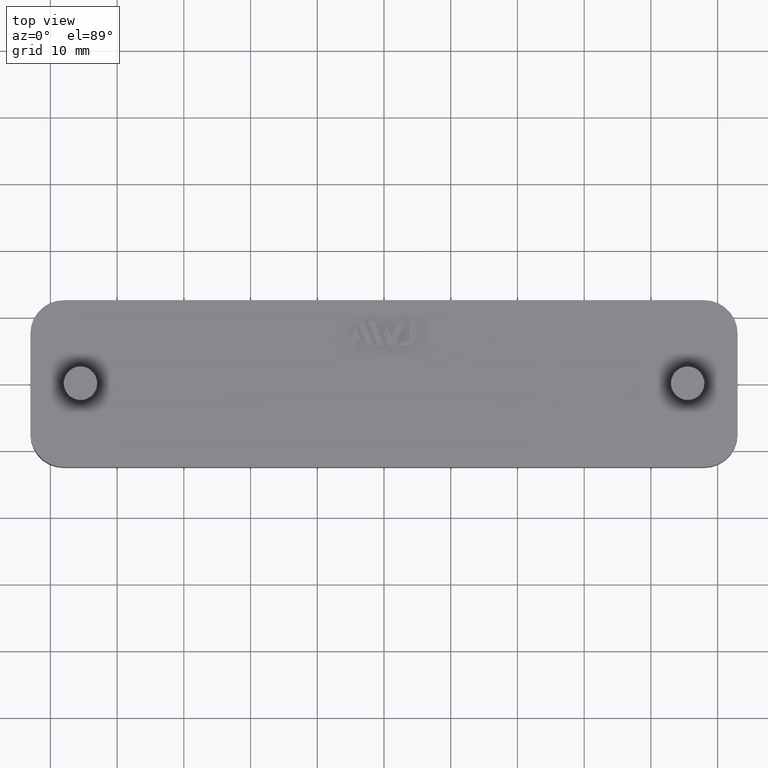
[diagram: clean part render]
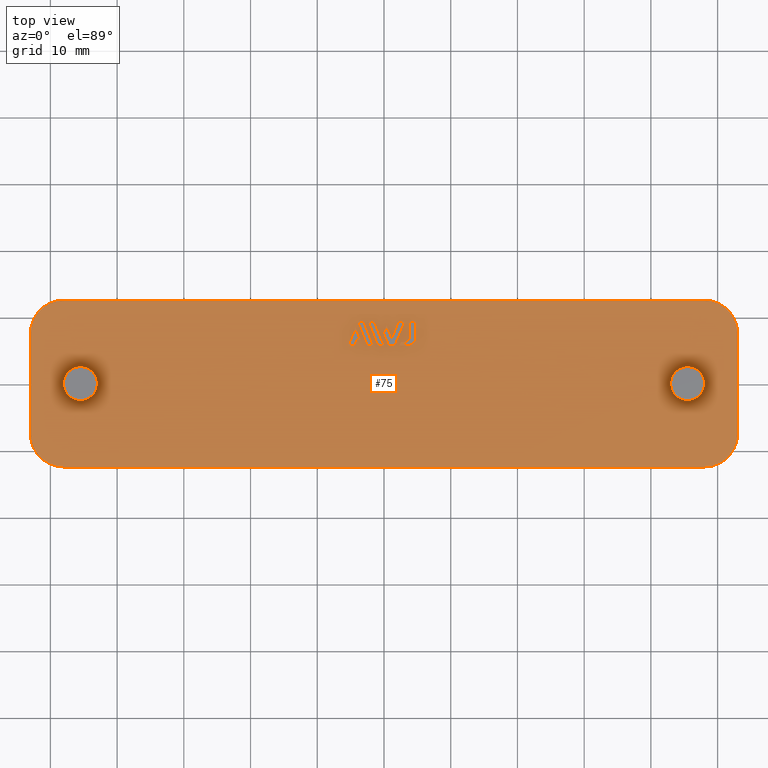
[diagram: same view with one face highlighted and labeled with its STEP entity id]
A machine part, top view. The second image highlights one B-rep face of the part: STEP entity #75.
In plain terms, the highlighted planar face has unit normal (0, -0, -1).
Its self-contained STEP definition (entity closure, byte-faithful):
#75 = ADVANCED_FACE( '', ( #642, #643, #644, #645, #646, #647, #648, #649 ), #650, .F. );
#642 = FACE_BOUND( '', #1862, .T. );
#643 = FACE_BOUND( '', #1863, .T. );
#644 = FACE_OUTER_BOUND( '', #1864, .T. );
#645 = FACE_BOUND( '', #1865, .T. );
#646 = FACE_BOUND( '', #1866, .T. );
#647 = FACE_BOUND( '', #1867, .T. );
#648 = FACE_BOUND( '', #1868, .T. );
#649 = FACE_BOUND( '', #1869, .T. );
#650 = PLANE( '', #1870 );
#1862 = EDGE_LOOP( '', ( #3082, #3083, #3084, #3085, #3086, #3087, #3088 ) );
#1863 = EDGE_LOOP( '', ( #3089, #3090, #3091, #3092 ) );
#1864 = EDGE_LOOP( '', ( #3093, #3094, #3095, #3096, #3097, #3098, #3099, #3100 ) );
#1865 = EDGE_LOOP( '', ( #3101 ) );
#1866 = EDGE_LOOP( '', ( #3102 ) );
#1867 = EDGE_LOOP( '', ( #3103, #3104, #3105, #3106, #3107 ) );
#1868 = EDGE_LOOP( '', ( #3108, #3109, #3110, #3111 ) );
#1869 = EDGE_LOOP( '', ( #3112, #3113, #3114, #3115, #3116, #3117, #3118, #3119 ) );
#1870 = AXIS2_PLACEMENT_3D( '', #3120, #3121, #3122 );
#3082 = ORIENTED_EDGE( '', *, *, #7644, .F. );
#3083 = ORIENTED_EDGE( '', *, *, #7645, .F. );
#3084 = ORIENTED_EDGE( '', *, *, #7646, .F. );
#3085 = ORIENTED_EDGE( '', *, *, #7647, .F. );
#3086 = ORIENTED_EDGE( '', *, *, #7648, .F. );
#3087 = ORIENTED_EDGE( '', *, *, #7649, .F. );
#3088 = ORIENTED_EDGE( '', *, *, #7650, .F. );
#3089 = ORIENTED_EDGE( '', *, *, #7651, .F. );
#3090 = ORIENTED_EDGE( '', *, *, #7652, .F. );
#3091 = ORIENTED_EDGE( '', *, *, #7653, .F. );
#3092 = ORIENTED_EDGE( '', *, *, #7654, .F. );
#3093 = ORIENTED_EDGE( '', *, *, #7655, .F. );
#3094 = ORIENTED_EDGE( '', *, *, #7656, .F. );
#3095 = ORIENTED_EDGE( '', *, *, #7657, .F. );
#3096 = ORIENTED_EDGE( '', *, *, #7658, .F. );
#3097 = ORIENTED_EDGE( '', *, *, #7659, .F. );
#3098 = ORIENTED_EDGE( '', *, *, #7660, .F. );
#3099 = ORIENTED_EDGE( '', *, *, #7661, .F. );
#3100 = ORIENTED_EDGE( '', *, *, #7662, .F. );
#3101 = ORIENTED_EDGE( '', *, *, #7663, .T. );
#3102 = ORIENTED_EDGE( '', *, *, #7664, .T. );
#3103 = ORIENTED_EDGE( '', *, *, #7665, .F. );
#3104 = ORIENTED_EDGE( '', *, *, #7666, .F. );
#3105 = ORIENTED_EDGE( '', *, *, #7667, .F. );
#3106 = ORIENTED_EDGE( '', *, *, #7668, .F. );
#3107 = ORIENTED_EDGE( '', *, *, #7669, .F. );
#3108 = ORIENTED_EDGE( '', *, *, #7670, .F. );
#3109 = ORIENTED_EDGE( '', *, *, #7671, .F. );
#3110 = ORIENTED_EDGE( '', *, *, #7672, .F. );
#3111 = ORIENTED_EDGE( '', *, *, #7673, .F. );
#3112 = ORIENTED_EDGE( '', *, *, #7674, .F. );
#3113 = ORIENTED_EDGE( '', *, *, #7675, .F. );
#3114 = ORIENTED_EDGE( '', *, *, #7676, .F. );
#3115 = ORIENTED_EDGE( '', *, *, #7677, .F. );
#3116 = ORIENTED_EDGE( '', *, *, #7678, .F. );
#3117 = ORIENTED_EDGE( '', *, *, #7679, .F. );
#3118 = ORIENTED_EDGE( '', *, *, #7680, .F. );
#3119 = ORIENTED_EDGE( '', *, *, #7681, .F. );
#3120 = CARTESIAN_POINT( '', ( 65.5000000000000, -7.75475603870257E-016, 9.99999999999998 ) );
#3121 = DIRECTION( '', ( 0.000000000000000, -6.12303176911189E-017, -1.00000000000000 ) );
#3122 = DIRECTION( '', ( 1.00000000000000, -1.60814287233912E-016, 9.84670989660330E-033 ) );
#7644 = EDGE_CURVE( '', #9076, #9077, #9078, .T. );
#7645 = EDGE_CURVE( '', #9079, #9076, #9080, .T. );
#7646 = EDGE_CURVE( '', #9081, #9079, #9082, .T. );
#7647 = EDGE_CURVE( '', #9083, #9081, #9084, .T. );
#7648 = EDGE_CURVE( '', #9085, #9083, #9086, .T. );
#7649 = EDGE_CURVE( '', #9087, #9085, #9088, .T. );
#7650 = EDGE_CURVE( '', #9077, #9087, #9089, .T. );
#7651 = EDGE_CURVE( '', #9090, #9091, #9092, .T. );
#7652 = EDGE_CURVE( '', #9093, #9090, #9094, .T. );
#7653 = EDGE_CURVE( '', #9095, #9093, #9096, .T. );
#7654 = EDGE_CURVE( '', #9091, #9095, #9097, .T. );
#7655 = EDGE_CURVE( '', #9098, #9099, #9100, .T. );
#7656 = EDGE_CURVE( '', #9101, #9098, #9102, .T. );
#7657 = EDGE_CURVE( '', #9103, #9101, #9104, .T. );
#7658 = EDGE_CURVE( '', #9105, #9103, #9106, .T. );
#7659 = EDGE_CURVE( '', #9107, #9105, #9108, .T. );
#7660 = EDGE_CURVE( '', #9109, #9107, #9110, .T. );
#7661 = EDGE_CURVE( '', #9111, #9109, #9112, .T. );
#7662 = EDGE_CURVE( '', #9099, #9111, #9113, .T. );
#7663 = EDGE_CURVE( '', #9114, #9114, #9115, .T. );
#7664 = EDGE_CURVE( '', #9116, #9116, #9117, .T. );
#7665 = EDGE_CURVE( '', #9118, #9119, #9120, .T. );
#7666 = EDGE_CURVE( '', #9121, #9118, #9122, .T. );
#7667 = EDGE_CURVE( '', #9123, #9121, #9124, .T. );
#7668 = EDGE_CURVE( '', #9125, #9123, #9126, .T. );
#7669 = EDGE_CURVE( '', #9119, #9125, #9127, .T. );
#7670 = EDGE_CURVE( '', #9128, #9129, #9130, .T. );
#7671 = EDGE_CURVE( '', #9131, #9128, #9132, .T. );
#7672 = EDGE_CURVE( '', #9133, #9131, #9134, .T. );
#7673 = EDGE_CURVE( '', #9129, #9133, #9135, .T. );
#7674 = EDGE_CURVE( '', #9136, #9137, #9138, .T. );
#7675 = EDGE_CURVE( '', #9139, #9136, #9140, .T. );
#7676 = EDGE_CURVE( '', #9141, #9139, #9142, .T. );
#7677 = EDGE_CURVE( '', #9143, #9141, #9144, .T. );
#7678 = EDGE_CURVE( '', #9145, #9143, #9146, .T. );
#7679 = EDGE_CURVE( '', #9147, #9145, #9148, .T. );
#7680 = EDGE_CURVE( '', #9149, #9147, #9150, .T. );
#7681 = EDGE_CURVE( '', #9137, #9149, #9151, .T. );
#9076 = VERTEX_POINT( '', #11464 );
#9077 = VERTEX_POINT( '', #11465 );
#9078 = LINE( '', #11466, #11467 );
#9079 = VERTEX_POINT( '', #11468 );
#9080 = LINE( '', #11469, #11470 );
#9081 = VERTEX_POINT( '', #11471 );
#9082 = LINE( '', #11472, #11473 );
#9083 = VERTEX_POINT( '', #11474 );
#9084 = LINE( '', #11475, #11476 );
#9085 = VERTEX_POINT( '', #11477 );
#9086 = LINE( '', #11478, #11479 );
#9087 = VERTEX_POINT( '', #11480 );
#9088 = LINE( '', #11481, #11482 );
#9089 = LINE( '', #11483, #11484 );
#9090 = VERTEX_POINT( '', #11485 );
#9091 = VERTEX_POINT( '', #11486 );
#9092 = LINE( '', #11487, #11488 );
#9093 = VERTEX_POINT( '', #11489 );
#9094 = LINE( '', #11490, #11491 );
#9095 = VERTEX_POINT( '', #11492 );
#9096 = LINE( '', #11493, #11494 );
#9097 = LINE( '', #11495, #11496 );
#9098 = VERTEX_POINT( '', #11497 );
#9099 = VERTEX_POINT( '', #11498 );
#9100 = CIRCLE( '', #11499, 4.99999999999999 );
#9101 = VERTEX_POINT( '', #11500 );
#9102 = LINE( '', #11501, #11502 );
#9103 = VERTEX_POINT( '', #11503 );
#9104 = CIRCLE( '', #11504, 5.00000000000000 );
#9105 = VERTEX_POINT( '', #11505 );
#9106 = LINE( '', #11506, #11507 );
#9107 = VERTEX_POINT( '', #11508 );
#9108 = CIRCLE( '', #11509, 5.00000000000000 );
#9109 = VERTEX_POINT( '', #11510 );
#9110 = LINE( '', #11511, #11512 );
#9111 = VERTEX_POINT( '', #11513 );
#9112 = CIRCLE( '', #11514, 5.00000000000000 );
#9113 = LINE( '', #11515, #11516 );
#9114 = VERTEX_POINT( '', #11517 );
#9115 = CIRCLE( '', #11518, 2.54363766232054 );
#9116 = VERTEX_POINT( '', #11519 );
#9117 = CIRCLE( '', #11520, 2.54363766232053 );
#9118 = VERTEX_POINT( '', #11521 );
#9119 = VERTEX_POINT( '', #11522 );
#9120 = LINE( '', #11523, #11524 );
#9121 = VERTEX_POINT( '', #11525 );
#9122 = LINE( '', #11526, #11527 );
#9123 = VERTEX_POINT( '', #11528 );
#9124 = LINE( '', #11529, #11530 );
#9125 = VERTEX_POINT( '', #11531 );
#9126 = LINE( '', #11532, #11533 );
#9127 = LINE( '', #11534, #11535 );
#9128 = VERTEX_POINT( '', #11536 );
#9129 = VERTEX_POINT( '', #11537 );
#9130 = LINE( '', #11538, #11539 );
#9131 = VERTEX_POINT( '', #11540 );
#9132 = LINE( '', #11541, #11542 );
#9133 = VERTEX_POINT( '', #11543 );
#9134 = LINE( '', #11544, #11545 );
#9135 = LINE( '', #11546, #11547 );
#9136 = VERTEX_POINT( '', #11548 );
#9137 = VERTEX_POINT( '', #11549 );
#9138 = CIRCLE( '', #11550, 1.20000000000000 );
#9139 = VERTEX_POINT( '', #11551 );
#9140 = LINE( '', #11552, #11553 );
#9141 = VERTEX_POINT( '', #11554 );
#9142 = LINE( '', #11555, #11556 );
#9143 = VERTEX_POINT( '', #11557 );
#9144 = LINE( '', #11558, #11559 );
#9145 = VERTEX_POINT( '', #11560 );
#9146 = CIRCLE( '', #11561, 0.799999999999993 );
#9147 = VERTEX_POINT( '', #11562 );
#9148 = LINE( '', #11563, #11564 );
#9149 = VERTEX_POINT( '', #11565 );
#9150 = LINE( '', #11566, #11567 );
#9151 = LINE( '', #11568, #11569 );
#11464 = CARTESIAN_POINT( '', ( 1.65153815900092, 5.70000000000035, 9.99999999999995 ) );
#11465 = CARTESIAN_POINT( '', ( 3.10489558569064, 9.29736617046504, 9.99999999999995 ) );
#11466 = CARTESIAN_POINT( '', ( 1.65153815900092, 5.70000000000035, 9.99999999999995 ) );
#11467 = VECTOR( '', #15268, 1000.00000000000 );
#11468 = CARTESIAN_POINT( '', ( 0.668868987414881, 5.70000000000035, 9.99999999999995 ) );
#11469 = CARTESIAN_POINT( '', ( 0.668868987414879, 5.70000000000035, 9.99999999999995 ) );
#11470 = VECTOR( '', #15269, 1000.00000000000 );
#11471 = CARTESIAN_POINT( '', ( -0.0717422425348929, 7.53275704409085, 9.99999999999995 ) );
#11472 = CARTESIAN_POINT( '', ( -0.0717422425348937, 7.53275704409086, 9.99999999999995 ) );
#11473 = VECTOR( '', #15270, 1000.00000000000 );
#11474 = CARTESIAN_POINT( '', ( 0.393055647481306, 8.68337374758990, 9.99999999999995 ) );
#11475 = CARTESIAN_POINT( '', ( 0.393055647481306, 8.68337374758989, 9.99999999999995 ) );
#11476 = VECTOR( '', #15271, 1000.00000000000 );
#11477 = CARTESIAN_POINT( '', ( 1.16010139340536, 6.78495716450369, 9.99999999999995 ) );
#11478 = CARTESIAN_POINT( '', ( 1.16010139340536, 6.78495716450370, 9.99999999999995 ) );
#11479 = VECTOR( '', #15272, 1000.00000000000 );
#11480 = CARTESIAN_POINT( '', ( 2.17529980565825, 9.29736617046504, 9.99999999999995 ) );
#11481 = CARTESIAN_POINT( '', ( 2.17529980565825, 9.29736617046503, 9.99999999999995 ) );
#11482 = VECTOR( '', #15273, 1000.00000000000 );
#11483 = CARTESIAN_POINT( '', ( 3.10489558569064, 9.29736617046504, 9.99999999999995 ) );
#11484 = VECTOR( '', #15274, 1000.00000000000 );
#11485 = CARTESIAN_POINT( '', ( -1.59847678860026, 5.70000000000034, 9.99999999999995 ) );
#11486 = CARTESIAN_POINT( '', ( -3.05206261720154, 9.29736617046503, 9.99999999999995 ) );
#11487 = CARTESIAN_POINT( '', ( -1.59847678860026, 5.70000000000034, 9.99999999999995 ) );
#11488 = VECTOR( '', #15275, 1000.00000000000 );
#11489 = CARTESIAN_POINT( '', ( -2.52799443113659, 5.70000000000035, 9.99999999999995 ) );
#11490 = CARTESIAN_POINT( '', ( -2.52799443113659, 5.70000000000034, 9.99999999999995 ) );
#11491 = VECTOR( '', #15276, 1000.00000000000 );
#11492 = CARTESIAN_POINT( '', ( -3.98137590013280, 9.29736617046503, 9.99999999999995 ) );
#11493 = CARTESIAN_POINT( '', ( -3.98137590013280, 9.29736617046503, 9.99999999999995 ) );
#11494 = VECTOR( '', #15277, 1000.00000000000 );
#11495 = CARTESIAN_POINT( '', ( -3.05206261720154, 9.29736617046503, 9.99999999999995 ) );
#11496 = VECTOR( '', #15278, 1000.00000000000 );
#11497 = CARTESIAN_POINT( '', ( 53.0000000000000, -7.49999999999999, 9.99999999999995 ) );
#11498 = CARTESIAN_POINT( '', ( 48.0000000000000, -12.5000000000000, 9.99999999999998 ) );
#11499 = AXIS2_PLACEMENT_3D( '', #15279, #15280, #15281 );
#11500 = CARTESIAN_POINT( '', ( 53.0000000000000, 7.50000000000002, 9.99999999999995 ) );
#11501 = CARTESIAN_POINT( '', ( 53.0000000000000, -7.75475603870267E-016, 9.99999999999998 ) );
#11502 = VECTOR( '', #15282, 1000.00000000000 );
#11503 = CARTESIAN_POINT( '', ( 48.0000000000000, 12.5000000000000, 9.99999999999995 ) );
#11504 = AXIS2_PLACEMENT_3D( '', #15283, #15284, #15285 );
#11505 = CARTESIAN_POINT( '', ( -48.0000000000000, 12.5000000000000, 9.99999999999998 ) );
#11506 = CARTESIAN_POINT( '', ( -65.4999999999999, 12.5000000000000, 9.99999999999998 ) );
#11507 = VECTOR( '', #15286, 1000.00000000000 );
#11508 = CARTESIAN_POINT( '', ( -53.0000000000000, 7.50000000000001, 9.99999999999998 ) );
#11509 = AXIS2_PLACEMENT_3D( '', #15287, #15288, #15289 );
#11510 = CARTESIAN_POINT( '', ( -53.0000000000000, -7.50000000000001, 9.99999999999998 ) );
#11511 = CARTESIAN_POINT( '', ( -53.0000000000000, -7.75475603870261E-016, 9.99999999999998 ) );
#11512 = VECTOR( '', #15290, 1000.00000000000 );
#11513 = CARTESIAN_POINT( '', ( -48.0000000000000, -12.5000000000000, 9.99999999999998 ) );
#11514 = AXIS2_PLACEMENT_3D( '', #15291, #15292, #15293 );
#11515 = CARTESIAN_POINT( '', ( 65.5000000000001, -12.5000000000000, 9.99999999999998 ) );
#11516 = VECTOR( '', #15294, 1000.00000000000 );
#11517 = CARTESIAN_POINT( '', ( -45.5000000000000, 2.54363766232053, 9.99999999999998 ) );
#11518 = AXIS2_PLACEMENT_3D( '', #15295, #15296, #15297 );
#11519 = CARTESIAN_POINT( '', ( 45.4999999999999, 2.54363766232053, 9.99999999999998 ) );
#11520 = AXIS2_PLACEMENT_3D( '', #15298, #15299, #15300 );
#11521 = CARTESIAN_POINT( '', ( -4.42597825270616, 5.70000000000034, 9.99999999999995 ) );
#11522 = CARTESIAN_POINT( '', ( -4.09004712542044, 6.53085402732117, 9.99999999999995 ) );
#11523 = CARTESIAN_POINT( '', ( -4.42597825270616, 5.70000000000034, 9.99999999999995 ) );
#11524 = VECTOR( '', #15301, 1000.00000000000 );
#11525 = CARTESIAN_POINT( '', ( -5.35529153563743, 5.70000000000035, 9.99999999999995 ) );
#11526 = CARTESIAN_POINT( '', ( -5.35529153563743, 5.70000000000034, 9.99999999999995 ) );
#11527 = VECTOR( '', #15302, 1000.00000000000 );
#11528 = CARTESIAN_POINT( '', ( -4.26568819540690, 8.39721019471687, 9.99999999999995 ) );
#11529 = CARTESIAN_POINT( '', ( -4.26568819540690, 8.39721019471687, 9.99999999999995 ) );
#11530 = VECTOR( '', #15303, 1000.00000000000 );
#11531 = CARTESIAN_POINT( '', ( -3.51197991900239, 6.53085402732117, 9.99999999999995 ) );
#11532 = CARTESIAN_POINT( '', ( -3.51197991900239, 6.53085402732117, 9.99999999999995 ) );
#11533 = VECTOR( '', #15304, 1000.00000000000 );
#11534 = CARTESIAN_POINT( '', ( -4.09004712542044, 6.53085402732117, 9.99999999999995 ) );
#11535 = VECTOR( '', #15305, 1000.00000000000 );
#11536 = CARTESIAN_POINT( '', ( 1.27502175484295E-013, 5.70000000000035, 9.99999999999995 ) );
#11537 = CARTESIAN_POINT( '', ( -1.45358582860116, 9.29736617046503, 9.99999999999995 ) );
#11538 = CARTESIAN_POINT( '', ( 1.27502175484295E-013, 5.70000000000035, 9.99999999999995 ) );
#11539 = VECTOR( '', #15306, 1000.00000000000 );
#11540 = CARTESIAN_POINT( '', ( -0.929583758879027, 5.70000000000035, 9.99999999999995 ) );
#11541 = CARTESIAN_POINT( '', ( -0.929583758879027, 5.70000000000035, 9.99999999999995 ) );
#11542 = VECTOR( '', #15307, 1000.00000000000 );
#11543 = CARTESIAN_POINT( '', ( -2.38316958748031, 9.29736617046503, 9.99999999999995 ) );
#11544 = CARTESIAN_POINT( '', ( -2.38316958748031, 9.29736617046503, 9.99999999999995 ) );
#11545 = VECTOR( '', #15308, 1000.00000000000 );
#11546 = CARTESIAN_POINT( '', ( -1.45358582860116, 9.29736617046503, 9.99999999999995 ) );
#11547 = VECTOR( '', #15309, 1000.00000000000 );
#11548 = CARTESIAN_POINT( '', ( 3.58288028181896, 5.70000000000035, 9.99999999999995 ) );
#11549 = CARTESIAN_POINT( '', ( 4.78288028181895, 6.90000000000035, 9.99999999999995 ) );
#11550 = AXIS2_PLACEMENT_3D( '', #15310, #15311, #15312 );
#11551 = CARTESIAN_POINT( '', ( 2.32040714641566, 5.70000000000035, 9.99999999999995 ) );
#11552 = CARTESIAN_POINT( '', ( 2.32040714641566, 5.70000000000035, 9.99999999999995 ) );
#11553 = VECTOR( '', #15313, 1000.00000000000 );
#11554 = CARTESIAN_POINT( '', ( 2.53176335265073, 6.22312496744069, 9.99999999999995 ) );
#11555 = CARTESIAN_POINT( '', ( 2.53176335265073, 6.22312496744070, 9.99999999999995 ) );
#11556 = VECTOR( '', #15314, 1000.00000000000 );
#11557 = CARTESIAN_POINT( '', ( 3.04274195062409, 6.22312496744070, 9.99999999999995 ) );
#11558 = CARTESIAN_POINT( '', ( 3.04274195062409, 6.22312496744069, 9.99999999999995 ) );
#11559 = VECTOR( '', #15315, 1000.00000000000 );
#11560 = CARTESIAN_POINT( '', ( 3.84274195062409, 7.02312496744069, 9.99999999999995 ) );
#11561 = AXIS2_PLACEMENT_3D( '', #15316, #15317, #15318 );
#11562 = CARTESIAN_POINT( '', ( 3.84274195062409, 9.29736617046504, 9.99999999999995 ) );
#11563 = CARTESIAN_POINT( '', ( 3.84274195062409, 9.29736617046504, 9.99999999999995 ) );
#11564 = VECTOR( '', #15319, 1000.00000000000 );
#11565 = CARTESIAN_POINT( '', ( 4.78288028181895, 9.29736617046504, 9.99999999999995 ) );
#11566 = CARTESIAN_POINT( '', ( 4.78288028181895, 9.29736617046504, 9.99999999999995 ) );
#11567 = VECTOR( '', #15320, 1000.00000000000 );
#11568 = CARTESIAN_POINT( '', ( 4.78288028181895, 6.90000000000035, 9.99999999999995 ) );
#11569 = VECTOR( '', #15321, 1000.00000000000 );
#15268 = DIRECTION( '', ( 0.374590451773198, 0.927190376050329, -1.14681461830666E-016 ) );
#15269 = DIRECTION( '', ( 1.00000000000000, -1.16740587805223E-031, -3.06151588455602E-016 ) );
#15270 = DIRECTION( '', ( 0.374662832411421, -0.927161130553612, -1.14703621278032E-016 ) );
#15271 = DIRECTION( '', ( -0.374550179126525, -0.927206645422846, 1.14669132295916E-016 ) );
#15272 = DIRECTION( '', ( -0.374621565025663, 0.927177805503196, 1.14690987202330E-016 ) );
#15273 = DIRECTION( '', ( -0.374644435760503, -0.927168564368796, 1.14697989114131E-016 ) );
#15274 = DIRECTION( '', ( -1.00000000000000, 1.87457590227772E-032, 3.06151588455602E-016 ) );
#15275 = DIRECTION( '', ( -0.374641058409020, 0.927169929060563, 1.14696955132609E-016 ) );
#15276 = DIRECTION( '', ( 1.00000000000000, -1.87457590227772E-032, -3.06151588455602E-016 ) );
#15277 = DIRECTION( '', ( 0.374595778945160, -0.927188223823226, -1.14683092752824E-016 ) );
#15278 = DIRECTION( '', ( -1.00000000000000, 1.22366894099660E-031, 3.06151588455602E-016 ) );
#15279 = CARTESIAN_POINT( '', ( 48.0000000000000, -7.49999999999999, 9.99999999999998 ) );
#15280 = DIRECTION( '', ( 0.000000000000000, -6.12303176911189E-017, -1.00000000000000 ) );
#15281 = DIRECTION( '', ( 0.000000000000000, 1.00000000000000, -6.12303176911189E-017 ) );
#15282 = DIRECTION( '', ( 7.88860905221012E-031, -1.00000000000000, 6.12303176911189E-017 ) );
#15283 = CARTESIAN_POINT( '', ( 48.0000000000000, 7.50000000000002, 9.99999999999998 ) );
#15284 = DIRECTION( '', ( 0.000000000000000, -6.12303176911189E-017, -1.00000000000000 ) );
#15285 = DIRECTION( '', ( 0.000000000000000, 1.00000000000000, -6.12303176911189E-017 ) );
#15286 = DIRECTION( '', ( 1.00000000000000, 2.46519032881566E-032, -1.50944387002457E-048 ) );
#15287 = CARTESIAN_POINT( '', ( -48.0000000000000, 7.49999999999999, 9.99999999999998 ) );
#15288 = DIRECTION( '', ( 0.000000000000000, -6.12303176911189E-017, -1.00000000000000 ) );
#15289 = DIRECTION( '', ( 0.000000000000000, 1.00000000000000, -6.12303176911189E-017 ) );
#15290 = DIRECTION( '', ( -2.95286543775261E-032, 1.00000000000000, -6.12303176911189E-017 ) );
#15291 = CARTESIAN_POINT( '', ( -48.0000000000000, -7.50000000000002, 9.99999999999998 ) );
#15292 = DIRECTION( '', ( 0.000000000000000, -6.12303176911189E-017, -1.00000000000000 ) );
#15293 = DIRECTION( '', ( 0.000000000000000, 1.00000000000000, -6.12303176911189E-017 ) );
#15294 = DIRECTION( '', ( -1.00000000000000, 0.000000000000000, 0.000000000000000 ) );
#15295 = CARTESIAN_POINT( '', ( -45.5000000000000, -2.55177823316189E-015, 9.99999999999998 ) );
#15296 = DIRECTION( '', ( 0.000000000000000, -6.12303176911189E-017, -1.00000000000000 ) );
#15297 = DIRECTION( '', ( 0.000000000000000, 1.00000000000000, -6.12303176911189E-017 ) );
#15298 = CARTESIAN_POINT( '', ( 45.4999999999999, 4.31848567322699E-015, 9.99999999999998 ) );
#15299 = DIRECTION( '', ( 0.000000000000000, -6.12303176911189E-017, -1.00000000000000 ) );
#15300 = DIRECTION( '', ( 0.000000000000000, 1.00000000000000, -6.12303176911189E-017 ) );
#15301 = DIRECTION( '', ( 0.374840934415179, 0.927089140205383, -1.14758147489389E-016 ) );
#15302 = DIRECTION( '', ( 1.00000000000000, 5.55111512312576E-017, -3.06151588455602E-016 ) );
#15303 = DIRECTION( '', ( -0.374565126786346, -0.927200607094025, 1.14673708545714E-016 ) );
#15304 = DIRECTION( '', ( -0.374457717202846, 0.927243990558706, 1.14640824931110E-016 ) );
#15305 = DIRECTION( '', ( 1.00000000000000, -1.87457590227772E-032, -3.06151588455602E-016 ) );
#15306 = DIRECTION( '', ( -0.374641058409020, 0.927169929060563, 1.14696955132609E-016 ) );
#15307 = DIRECTION( '', ( 1.00000000000000, -2.22044604925031E-016, -3.06151588455602E-016 ) );
#15308 = DIRECTION( '', ( 0.374641058409020, -0.927169929060563, -1.14696955132609E-016 ) );
#15309 = DIRECTION( '', ( -1.00000000000000, 2.22044604925031E-016, 3.06151588455602E-016 ) );
#15310 = CARTESIAN_POINT( '', ( 3.58288028181896, 6.90000000000035, 9.99999999999995 ) );
#15311 = DIRECTION( '', ( 8.35907093918068E-030, -1.15035928554876E-014, 1.00000000000000 ) );
#15312 = DIRECTION( '', ( 0.000000000000000, -1.00000000000000, -1.15035928554876E-014 ) );
#15313 = DIRECTION( '', ( 1.00000000000000, -1.87457590227772E-032, -3.06151588455602E-016 ) );
#15314 = DIRECTION( '', ( -0.374606593415912, -0.927183854566787, 1.14686403620224E-016 ) );
#15315 = DIRECTION( '', ( -1.00000000000000, 6.58595215175726E-032, 3.06151588455602E-016 ) );
#15316 = CARTESIAN_POINT( '', ( 3.04274195062409, 7.02312496744069, 9.99999999999995 ) );
#15317 = DIRECTION( '', ( 0.000000000000000, -6.12303176911189E-017, -1.00000000000000 ) );
#15318 = DIRECTION( '', ( 1.00000000000000, 0.000000000000000, 0.000000000000000 ) );
#15319 = DIRECTION( '', ( -6.07153216591884E-017, -1.00000000000000, 8.62816615085482E-032 ) );
#15320 = DIRECTION( '', ( -1.00000000000000, 1.87457590227772E-032, 3.06151588455602E-016 ) );
#15321 = DIRECTION( '', ( 6.07153216591883E-017, 1.00000000000000, -1.10933564796705E-031 ) );